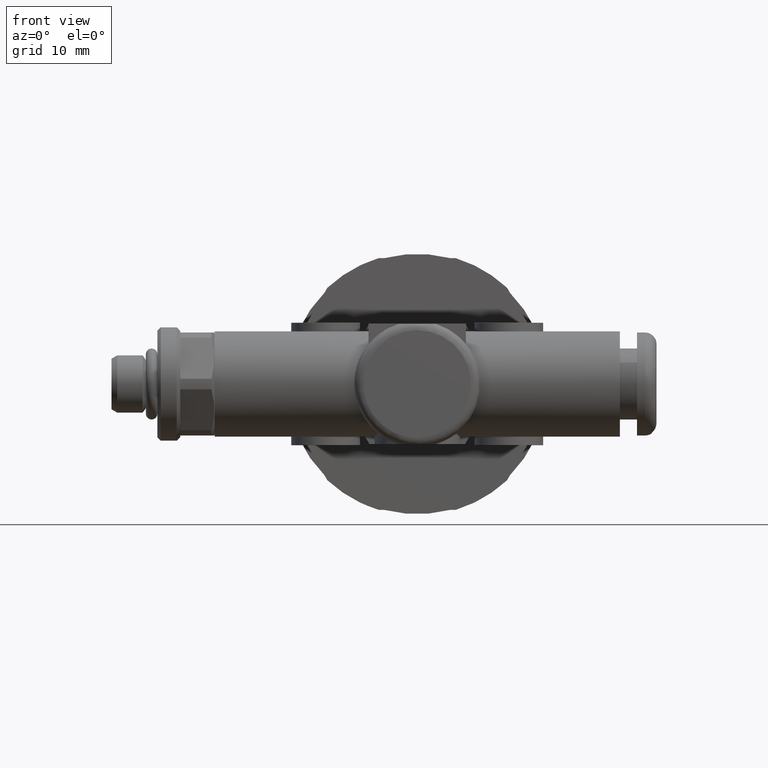
[diagram: clean part render]
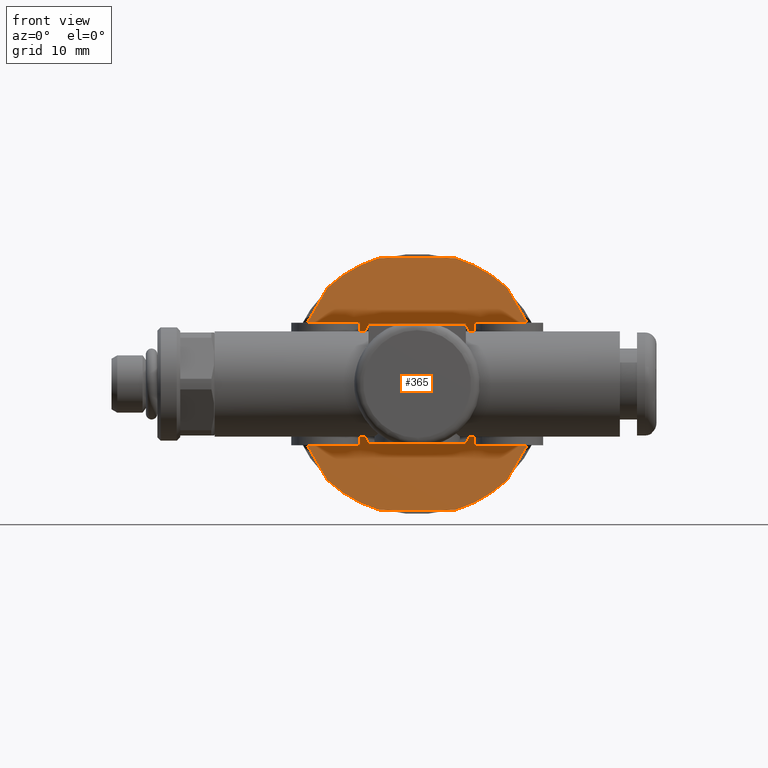
[diagram: same view with one face highlighted and labeled with its STEP entity id]
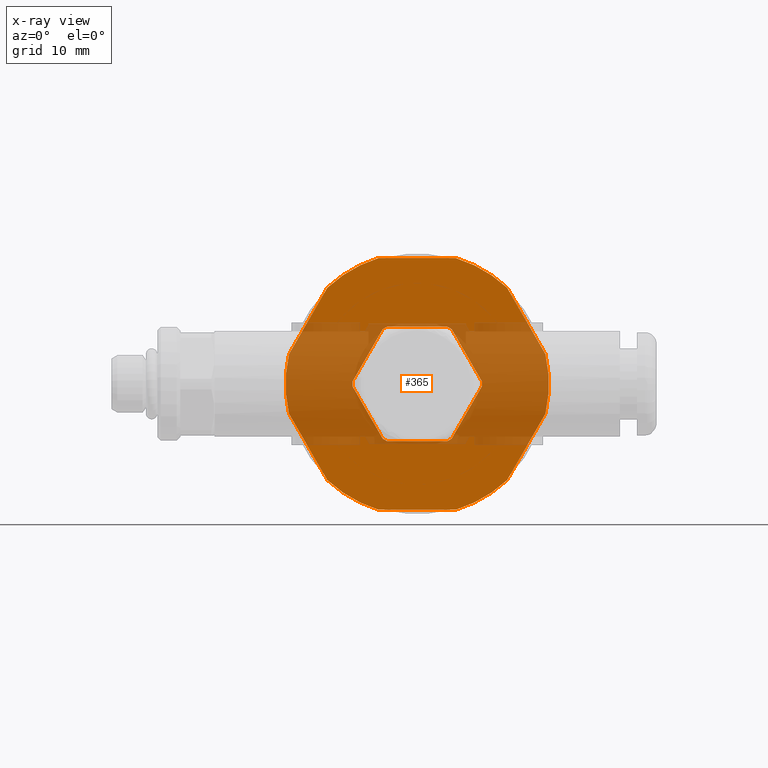
[diagram: x-ray of the same camera — body ghosted, the highlighted face saturated]
A machine part, front view. The second image highlights one B-rep face of the part: STEP entity #365.
The next image is the same camera in x-ray: the body ghosted, the highlighted face saturated — about 45% of this face is hidden behind the body in this view.
In plain terms, the highlighted planar face has unit normal (0, 1, 0).
Its self-contained STEP definition (entity closure, byte-faithful):
#365 = ADVANCED_FACE( '', ( #893, #894 ), #895, .F. );
#893 = FACE_BOUND( '', #1679, .T. );
#894 = FACE_OUTER_BOUND( '', #1680, .T. );
#895 = PLANE( '', #1681 );
#1679 = EDGE_LOOP( '', ( #2512, #2513, #2514, #2515, #2516, #2517, #2518, #2519, #2520, #2521, #2522, #2523 ) );
#1680 = EDGE_LOOP( '', ( #2524, #2525, #2526, #2527, #2528, #2529, #2530, #2531, #2532, #2533, #2534, #2535 ) );
#1681 = AXIS2_PLACEMENT_3D( '', #2536, #2537, #2538 );
#2512 = ORIENTED_EDGE( '', *, *, #4348, .T. );
#2513 = ORIENTED_EDGE( '', *, *, #4349, .F. );
#2514 = ORIENTED_EDGE( '', *, *, #4350, .T. );
#2515 = ORIENTED_EDGE( '', *, *, #4351, .F. );
#2516 = ORIENTED_EDGE( '', *, *, #4352, .T. );
#2517 = ORIENTED_EDGE( '', *, *, #4353, .F. );
#2518 = ORIENTED_EDGE( '', *, *, #4354, .T. );
#2519 = ORIENTED_EDGE( '', *, *, #4355, .F. );
#2520 = ORIENTED_EDGE( '', *, *, #4356, .T. );
#2521 = ORIENTED_EDGE( '', *, *, #4357, .F. );
#2522 = ORIENTED_EDGE( '', *, *, #4358, .T. );
#2523 = ORIENTED_EDGE( '', *, *, #4340, .F. );
#2524 = ORIENTED_EDGE( '', *, *, #4359, .T. );
#2525 = ORIENTED_EDGE( '', *, *, #4360, .T. );
#2526 = ORIENTED_EDGE( '', *, *, #4361, .T. );
#2527 = ORIENTED_EDGE( '', *, *, #4362, .T. );
#2528 = ORIENTED_EDGE( '', *, *, #4363, .T. );
#2529 = ORIENTED_EDGE( '', *, *, #4364, .T. );
#2530 = ORIENTED_EDGE( '', *, *, #4365, .T. );
#2531 = ORIENTED_EDGE( '', *, *, #4366, .T. );
#2532 = ORIENTED_EDGE( '', *, *, #4367, .T. );
#2533 = ORIENTED_EDGE( '', *, *, #4368, .T. );
#2534 = ORIENTED_EDGE( '', *, *, #4369, .T. );
#2535 = ORIENTED_EDGE( '', *, *, #4370, .T. );
#2536 = CARTESIAN_POINT( '', ( 11.5000000000000, 5.21000000000000, 0.000000000000000 ) );
#2537 = DIRECTION( '', ( 0.000000000000000, 1.00000000000000, 0.000000000000000 ) );
#2538 = DIRECTION( '', ( 0.000000000000000, -0.000000000000000, 1.00000000000000 ) );
#4340 = EDGE_CURVE( '', #5101, #5103, #5104, .T. );
#4348 = EDGE_CURVE( '', #5101, #5116, #5117, .T. );
#4349 = EDGE_CURVE( '', #5118, #5116, #5119, .T. );
#4350 = EDGE_CURVE( '', #5118, #5120, #5121, .T. );
#4351 = EDGE_CURVE( '', #5122, #5120, #5123, .T. );
#4352 = EDGE_CURVE( '', #5122, #5124, #5125, .T. );
#4353 = EDGE_CURVE( '', #5126, #5124, #5127, .T. );
#4354 = EDGE_CURVE( '', #5126, #5128, #5129, .T. );
#4355 = EDGE_CURVE( '', #5130, #5128, #5131, .T. );
#4356 = EDGE_CURVE( '', #5130, #5132, #5133, .T. );
#4357 = EDGE_CURVE( '', #5134, #5132, #5135, .T. );
#4358 = EDGE_CURVE( '', #5134, #5103, #5136, .T. );
#4359 = EDGE_CURVE( '', #5137, #5138, #5139, .T. );
#4360 = EDGE_CURVE( '', #5138, #5140, #5141, .T. );
#4361 = EDGE_CURVE( '', #5140, #5142, #5143, .T. );
#4362 = EDGE_CURVE( '', #5142, #5144, #5145, .T. );
#4363 = EDGE_CURVE( '', #5144, #5146, #5147, .T. );
#4364 = EDGE_CURVE( '', #5146, #5148, #5149, .T. );
#4365 = EDGE_CURVE( '', #5148, #5150, #5151, .T. );
#4366 = EDGE_CURVE( '', #5150, #5152, #5153, .T. );
#4367 = EDGE_CURVE( '', #5152, #5154, #5155, .T. );
#4368 = EDGE_CURVE( '', #5154, #5156, #5157, .T. );
#4369 = EDGE_CURVE( '', #5156, #5158, #5159, .T. );
#4370 = EDGE_CURVE( '', #5158, #5137, #5160, .T. );
#5101 = VERTEX_POINT( '', #6290 );
#5103 = VERTEX_POINT( '', #6293 );
#5104 = CIRCLE( '', #6294, 5.65000000000000 );
#5116 = VERTEX_POINT( '', #6311 );
#5117 = LINE( '', #6312, #6313 );
#5118 = VERTEX_POINT( '', #6314 );
#5119 = CIRCLE( '', #6315, 5.65000000000000 );
#5120 = VERTEX_POINT( '', #6316 );
#5121 = LINE( '', #6317, #6318 );
#5122 = VERTEX_POINT( '', #6319 );
#5123 = CIRCLE( '', #6320, 5.65000000000000 );
#5124 = VERTEX_POINT( '', #6321 );
#5125 = LINE( '', #6322, #6323 );
#5126 = VERTEX_POINT( '', #6324 );
#5127 = CIRCLE( '', #6325, 5.65000000000000 );
#5128 = VERTEX_POINT( '', #6326 );
#5129 = LINE( '', #6327, #6328 );
#5130 = VERTEX_POINT( '', #6329 );
#5131 = CIRCLE( '', #6330, 5.65000000000000 );
#5132 = VERTEX_POINT( '', #6331 );
#5133 = LINE( '', #6332, #6333 );
#5134 = VERTEX_POINT( '', #6334 );
#5135 = CIRCLE( '', #6335, 5.65000000000000 );
#5136 = LINE( '', #6336, #6337 );
#5137 = VERTEX_POINT( '', #6338 );
#5138 = VERTEX_POINT( '', #6339 );
#5139 = CIRCLE( '', #6340, 11.5000000000000 );
#5140 = VERTEX_POINT( '', #6341 );
#5141 = LINE( '', #6342, #6343 );
#5142 = VERTEX_POINT( '', #6344 );
#5143 = CIRCLE( '', #6345, 11.5000000000000 );
#5144 = VERTEX_POINT( '', #6346 );
#5145 = LINE( '', #6347, #6348 );
#5146 = VERTEX_POINT( '', #6349 );
#5147 = CIRCLE( '', #6350, 11.5000000000000 );
#5148 = VERTEX_POINT( '', #6351 );
#5149 = LINE( '', #6352, #6353 );
#5150 = VERTEX_POINT( '', #6354 );
#5151 = CIRCLE( '', #6355, 11.5000000000000 );
#5152 = VERTEX_POINT( '', #6356 );
#5153 = LINE( '', #6357, #6358 );
#5154 = VERTEX_POINT( '', #6359 );
#5155 = CIRCLE( '', #6360, 11.5000000000000 );
#5156 = VERTEX_POINT( '', #6361 );
#5157 = LINE( '', #6362, #6363 );
#5158 = VERTEX_POINT( '', #6364 );
#5159 = CIRCLE( '', #6365, 11.5000000000000 );
#5160 = LINE( '', #6366, #6367 );
#6290 = CARTESIAN_POINT( '', ( -5.00000000000000, 5.21000000000000, -2.63106442338457 ) );
#6293 = CARTESIAN_POINT( '', ( -4.77856862964450, 5.21000000000000, -3.01459480722991 ) );
#6294 = AXIS2_PLACEMENT_3D( '', #8116, #8117, #8118 );
#6311 = CARTESIAN_POINT( '', ( -5.00000000000000, 5.21000000000000, 2.63106442338457 ) );
#6312 = CARTESIAN_POINT( '', ( -5.00000000000000, 5.21000000000000, -2.88675134594813 ) );
#6313 = VECTOR( '', #8124, 1000.00000000000 );
#6314 = CARTESIAN_POINT( '', ( -4.77856862964450, 5.21000000000000, 3.01459480722991 ) );
#6315 = AXIS2_PLACEMENT_3D( '', #8125, #8126, #8127 );
#6316 = CARTESIAN_POINT( '', ( -0.221431370355502, 5.21000000000000, 5.64565923061448 ) );
#6317 = CARTESIAN_POINT( '', ( -5.00000000000000, 5.21000000000000, 2.88675134594813 ) );
#6318 = VECTOR( '', #8128, 1000.00000000000 );
#6319 = CARTESIAN_POINT( '', ( 0.221431370355502, 5.21000000000000, 5.64565923061448 ) );
#6320 = AXIS2_PLACEMENT_3D( '', #8129, #8130, #8131 );
#6321 = CARTESIAN_POINT( '', ( 4.77856862964450, 5.21000000000000, 3.01459480722991 ) );
#6322 = CARTESIAN_POINT( '', ( 0.000000000000000, 5.21000000000000, 5.77350269189626 ) );
#6323 = VECTOR( '', #8132, 1000.00000000000 );
#6324 = CARTESIAN_POINT( '', ( 5.00000000000000, 5.21000000000000, 2.63106442338457 ) );
#6325 = AXIS2_PLACEMENT_3D( '', #8133, #8134, #8135 );
#6326 = CARTESIAN_POINT( '', ( 5.00000000000000, 5.21000000000000, -2.63106442338457 ) );
#6327 = CARTESIAN_POINT( '', ( 5.00000000000000, 5.21000000000000, 2.88675134594813 ) );
#6328 = VECTOR( '', #8136, 1000.00000000000 );
#6329 = CARTESIAN_POINT( '', ( 4.77856862964450, 5.21000000000000, -3.01459480722991 ) );
#6330 = AXIS2_PLACEMENT_3D( '', #8137, #8138, #8139 );
#6331 = CARTESIAN_POINT( '', ( 0.221431370355502, 5.21000000000000, -5.64565923061448 ) );
#6332 = CARTESIAN_POINT( '', ( 5.00000000000000, 5.21000000000000, -2.88675134594813 ) );
#6333 = VECTOR( '', #8140, 1000.00000000000 );
#6334 = CARTESIAN_POINT( '', ( -0.221431370355502, 5.21000000000000, -5.64565923061448 ) );
#6335 = AXIS2_PLACEMENT_3D( '', #8141, #8142, #8143 );
#6336 = CARTESIAN_POINT( '', ( 0.000000000000000, 5.21000000000000, -5.77350269189626 ) );
#6337 = VECTOR( '', #8144, 1000.00000000000 );
#6338 = CARTESIAN_POINT( '', ( -8.40473750965557, 5.21000000000000, 7.84922845850398 ) );
#6339 = CARTESIAN_POINT( '', ( -11.0000000000000, 5.21000000000000, 3.35410196624968 ) );
#6340 = AXIS2_PLACEMENT_3D( '', #8145, #8146, #8147 );
#6341 = CARTESIAN_POINT( '', ( -11.0000000000000, 5.21000000000000, -3.35410196624968 ) );
#6342 = CARTESIAN_POINT( '', ( -11.0000000000000, 5.21000000000000, 0.000000000000000 ) );
#6343 = VECTOR( '', #8148, 1000.00000000000 );
#6344 = CARTESIAN_POINT( '', ( -8.40473750965557, 5.21000000000000, -7.84922845850398 ) );
#6345 = AXIS2_PLACEMENT_3D( '', #8149, #8150, #8151 );
#6346 = CARTESIAN_POINT( '', ( -2.59526249034443, 5.21000000000000, -11.2033304247537 ) );
#6347 = CARTESIAN_POINT( '', ( 3.12500000000000, 5.21000000000000, -14.5059255133893 ) );
#6348 = VECTOR( '', #8152, 1000.00000000000 );
#6349 = CARTESIAN_POINT( '', ( 2.59526249034443, 5.21000000000000, -11.2033304247537 ) );
#6350 = AXIS2_PLACEMENT_3D( '', #8153, #8154, #8155 );
#6351 = CARTESIAN_POINT( '', ( 8.40473750965557, 5.21000000000000, -7.84922845850398 ) );
#6352 = CARTESIAN_POINT( '', ( 14.1250000000000, 5.21000000000000, -4.54663336986830 ) );
#6353 = VECTOR( '', #8156, 1000.00000000000 );
#6354 = CARTESIAN_POINT( '', ( 11.0000000000000, 5.21000000000000, -3.35410196624968 ) );
#6355 = AXIS2_PLACEMENT_3D( '', #8157, #8158, #8159 );
#6356 = CARTESIAN_POINT( '', ( 11.0000000000000, 5.21000000000000, 3.35410196624968 ) );
#6357 = CARTESIAN_POINT( '', ( 11.0000000000000, 5.21000000000000, 0.000000000000000 ) );
#6358 = VECTOR( '', #8160, 1000.00000000000 );
#6359 = CARTESIAN_POINT( '', ( 8.40473750965557, 5.21000000000000, 7.84922845850398 ) );
#6360 = AXIS2_PLACEMENT_3D( '', #8161, #8162, #8163 );
#6361 = CARTESIAN_POINT( '', ( 2.59526249034443, 5.21000000000000, 11.2033304247537 ) );
#6362 = CARTESIAN_POINT( '', ( 14.1250000000000, 5.21000000000000, 4.54663336986830 ) );
#6363 = VECTOR( '', #8164, 1000.00000000000 );
#6364 = CARTESIAN_POINT( '', ( -2.59526249034443, 5.21000000000000, 11.2033304247537 ) );
#6365 = AXIS2_PLACEMENT_3D( '', #8165, #8166, #8167 );
#6366 = CARTESIAN_POINT( '', ( 3.12500000000000, 5.21000000000000, 14.5059255133893 ) );
#6367 = VECTOR( '', #8168, 1000.00000000000 );
#8116 = CARTESIAN_POINT( '', ( 0.000000000000000, 5.21000000000000, 0.000000000000000 ) );
#8117 = DIRECTION( '', ( 0.000000000000000, -1.00000000000000, -0.000000000000000 ) );
#8118 = DIRECTION( '', ( 0.000000000000000, 0.000000000000000, -1.00000000000000 ) );
#8124 = DIRECTION( '', ( 0.000000000000000, 0.000000000000000, 1.00000000000000 ) );
#8125 = CARTESIAN_POINT( '', ( 0.000000000000000, 5.21000000000000, 0.000000000000000 ) );
#8126 = DIRECTION( '', ( 0.000000000000000, -1.00000000000000, -0.000000000000000 ) );
#8127 = DIRECTION( '', ( 0.000000000000000, 0.000000000000000, -1.00000000000000 ) );
#8128 = DIRECTION( '', ( 0.866025403784439, 0.000000000000000, 0.500000000000000 ) );
#8129 = CARTESIAN_POINT( '', ( 0.000000000000000, 5.21000000000000, 0.000000000000000 ) );
#8130 = DIRECTION( '', ( 0.000000000000000, -1.00000000000000, -0.000000000000000 ) );
#8131 = DIRECTION( '', ( 0.000000000000000, 0.000000000000000, -1.00000000000000 ) );
#8132 = DIRECTION( '', ( 0.866025403784439, 0.000000000000000, -0.500000000000000 ) );
#8133 = CARTESIAN_POINT( '', ( 0.000000000000000, 5.21000000000000, 0.000000000000000 ) );
#8134 = DIRECTION( '', ( 0.000000000000000, -1.00000000000000, -0.000000000000000 ) );
#8135 = DIRECTION( '', ( 0.000000000000000, 0.000000000000000, -1.00000000000000 ) );
#8136 = DIRECTION( '', ( 0.000000000000000, 0.000000000000000, -1.00000000000000 ) );
#8137 = CARTESIAN_POINT( '', ( 0.000000000000000, 5.21000000000000, 0.000000000000000 ) );
#8138 = DIRECTION( '', ( 0.000000000000000, -1.00000000000000, -0.000000000000000 ) );
#8139 = DIRECTION( '', ( 0.000000000000000, 0.000000000000000, -1.00000000000000 ) );
#8140 = DIRECTION( '', ( -0.866025403784439, 0.000000000000000, -0.500000000000000 ) );
#8141 = CARTESIAN_POINT( '', ( 0.000000000000000, 5.21000000000000, 0.000000000000000 ) );
#8142 = DIRECTION( '', ( 0.000000000000000, -1.00000000000000, -0.000000000000000 ) );
#8143 = DIRECTION( '', ( 0.000000000000000, 0.000000000000000, -1.00000000000000 ) );
#8144 = DIRECTION( '', ( -0.866025403784439, 0.000000000000000, 0.500000000000000 ) );
#8145 = CARTESIAN_POINT( '', ( 0.000000000000000, 5.21000000000000, 0.000000000000000 ) );
#8146 = DIRECTION( '', ( 0.000000000000000, -1.00000000000000, -0.000000000000000 ) );
#8147 = DIRECTION( '', ( 0.000000000000000, 0.000000000000000, -1.00000000000000 ) );
#8148 = DIRECTION( '', ( 0.000000000000000, 0.000000000000000, -1.00000000000000 ) );
#8149 = CARTESIAN_POINT( '', ( 0.000000000000000, 5.21000000000000, 0.000000000000000 ) );
#8150 = DIRECTION( '', ( 0.000000000000000, -1.00000000000000, -0.000000000000000 ) );
#8151 = DIRECTION( '', ( 0.000000000000000, 0.000000000000000, -1.00000000000000 ) );
#8152 = DIRECTION( '', ( 0.866025403784439, 0.000000000000000, -0.500000000000000 ) );
#8153 = CARTESIAN_POINT( '', ( 0.000000000000000, 5.21000000000000, 0.000000000000000 ) );
#8154 = DIRECTION( '', ( 0.000000000000000, -1.00000000000000, -0.000000000000000 ) );
#8155 = DIRECTION( '', ( 0.000000000000000, 0.000000000000000, -1.00000000000000 ) );
#8156 = DIRECTION( '', ( 0.866025403784439, -0.000000000000000, 0.500000000000000 ) );
#8157 = CARTESIAN_POINT( '', ( 0.000000000000000, 5.21000000000000, 0.000000000000000 ) );
#8158 = DIRECTION( '', ( 0.000000000000000, -1.00000000000000, -0.000000000000000 ) );
#8159 = DIRECTION( '', ( 0.000000000000000, 0.000000000000000, -1.00000000000000 ) );
#8160 = DIRECTION( '', ( 0.000000000000000, -0.000000000000000, 1.00000000000000 ) );
#8161 = CARTESIAN_POINT( '', ( 0.000000000000000, 5.21000000000000, 0.000000000000000 ) );
#8162 = DIRECTION( '', ( 0.000000000000000, -1.00000000000000, -0.000000000000000 ) );
#8163 = DIRECTION( '', ( 0.000000000000000, 0.000000000000000, -1.00000000000000 ) );
#8164 = DIRECTION( '', ( -0.866025403784439, 0.000000000000000, 0.500000000000000 ) );
#8165 = CARTESIAN_POINT( '', ( 0.000000000000000, 5.21000000000000, 0.000000000000000 ) );
#8166 = DIRECTION( '', ( 0.000000000000000, -1.00000000000000, -0.000000000000000 ) );
#8167 = DIRECTION( '', ( 0.000000000000000, 0.000000000000000, -1.00000000000000 ) );
#8168 = DIRECTION( '', ( -0.866025403784439, 0.000000000000000, -0.500000000000000 ) );